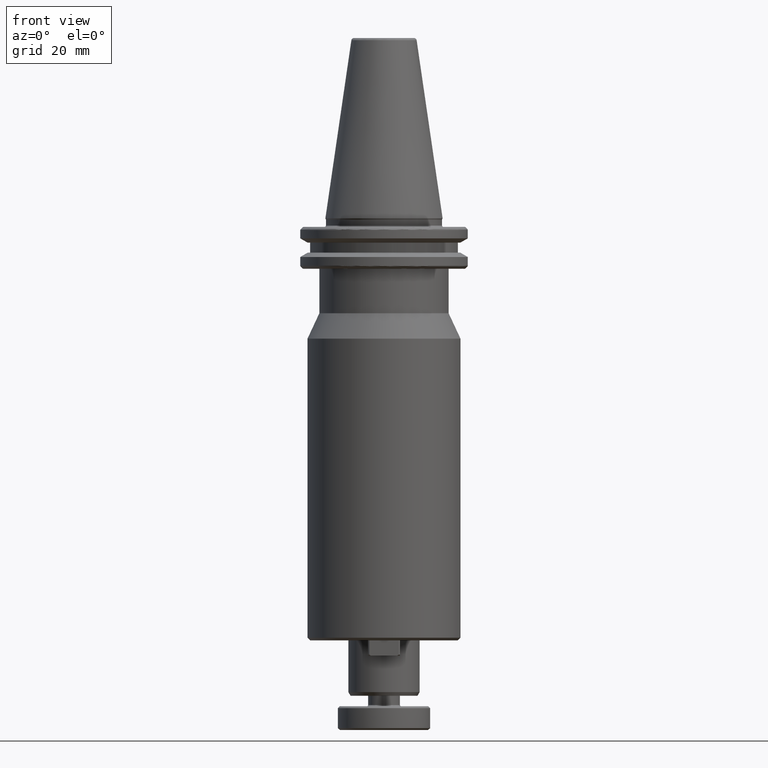
[diagram: clean part render]
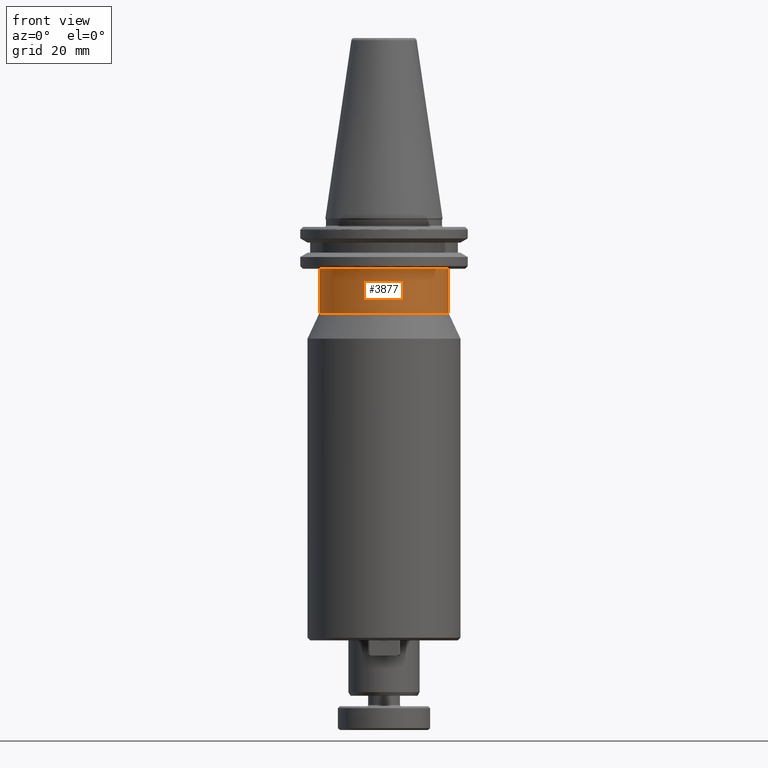
[diagram: same view with one face highlighted and labeled with its STEP entity id]
A machine part, front view. The second image highlights one B-rep face of the part: STEP entity #3877.
In plain terms, the highlighted cylindrical surface (partial cylindrical patch) has radius 24.5 mm, axis along (0, 0, 1).
Its self-contained STEP definition (entity closure, byte-faithful):
#101 = FACE_OUTER_BOUND ( 'NONE', #2073, .T. ) ;
#162 = CIRCLE ( 'NONE', #4006, 24.50000000000000000 ) ;
#250 = VERTEX_POINT ( 'NONE', #3318 ) ;
#475 = AXIS2_PLACEMENT_3D ( 'NONE', #3163, #1126, #3491 ) ;
#677 = CARTESIAN_POINT ( 'NONE',  ( 0.0000000000000000000, 0.0000000000000000000, 82.95681253582424100 ) ) ;
#681 = ORIENTED_EDGE ( 'NONE', *, *, #3479, .T. ) ;
#759 = CARTESIAN_POINT ( 'NONE',  ( 24.50000000000000000, 0.0000000000000000000, -35.94971885770703300 ) ) ;
#860 = DIRECTION ( 'NONE',  ( 1.000000000000000000, 0.0000000000000000000, 0.0000000000000000000 ) ) ;
#864 = DIRECTION ( 'NONE',  ( -0.0000000000000000000, -0.0000000000000000000, -1.000000000000000000 ) ) ;
#865 = CARTESIAN_POINT ( 'NONE',  ( 0.0000000000000000000, 0.0000000000000000000, -19.10000000000000500 ) ) ;
#977 = EDGE_CURVE ( 'NONE', #2034, #250, #162, .T. ) ;
#1126 = DIRECTION ( 'NONE',  ( 0.0000000000000000000, 0.0000000000000000000, -1.000000000000000000 ) ) ;
#1244 = CARTESIAN_POINT ( 'NONE',  ( -24.50000000000000000, 3.000384657911015500E-015, 82.95681253582424100 ) ) ;
#1353 = VERTEX_POINT ( 'NONE', #3596 ) ;
#1507 = VECTOR ( 'NONE', #1903, 1000.000000000000000 ) ;
#1903 = DIRECTION ( 'NONE',  ( 0.0000000000000000000, 0.0000000000000000000, 1.000000000000000000 ) ) ;
#2034 = VERTEX_POINT ( 'NONE', #3985 ) ;
#2073 = EDGE_LOOP ( 'NONE', ( #2955, #3757, #681, #3166 ) ) ;
#2326 = EDGE_CURVE ( 'NONE', #1353, #250, #3476, .T. ) ;
#2372 = DIRECTION ( 'NONE',  ( 0.0000000000000000000, 0.0000000000000000000, 1.000000000000000000 ) ) ;
#2409 = CYLINDRICAL_SURFACE ( 'NONE', #3813, 24.50000000000000000 ) ;
#2732 = DIRECTION ( 'NONE',  ( 0.0000000000000000000, 0.0000000000000000000, 1.000000000000000000 ) ) ;
#2830 = EDGE_CURVE ( 'NONE', #4015, #1353, #4011, .T. ) ;
#2955 = ORIENTED_EDGE ( 'NONE', *, *, #2326, .F. ) ;
#3039 = DIRECTION ( 'NONE',  ( 1.000000000000000000, 0.0000000000000000000, 0.0000000000000000000 ) ) ;
#3163 = CARTESIAN_POINT ( 'NONE',  ( 0.0000000000000000000, 0.0000000000000000000, -35.94971885770703300 ) ) ;
#3166 = ORIENTED_EDGE ( 'NONE', *, *, #977, .T. ) ;
#3297 = LINE ( 'NONE', #3870, #1507 ) ;
#3318 = CARTESIAN_POINT ( 'NONE',  ( -24.50000000000000000, 3.000384657911015500E-015, -19.10000000000000500 ) ) ;
#3476 = LINE ( 'NONE', #1244, #4226 ) ;
#3479 = EDGE_CURVE ( 'NONE', #4015, #2034, #3297, .T. ) ;
#3491 = DIRECTION ( 'NONE',  ( -1.000000000000000000, 0.0000000000000000000, 0.0000000000000000000 ) ) ;
#3596 = CARTESIAN_POINT ( 'NONE',  ( -24.50000000000000000, 3.000384657911015500E-015, -35.94971885770703300 ) ) ;
#3757 = ORIENTED_EDGE ( 'NONE', *, *, #2830, .F. ) ;
#3813 = AXIS2_PLACEMENT_3D ( 'NONE', #677, #2372, #3039 ) ;
#3870 = CARTESIAN_POINT ( 'NONE',  ( 24.50000000000000000, 0.0000000000000000000, 82.95681253582424100 ) ) ;
#3877 = ADVANCED_FACE ( 'NONE', ( #101 ), #2409, .T. ) ;
#3985 = CARTESIAN_POINT ( 'NONE',  ( 24.50000000000000000, 0.0000000000000000000, -19.10000000000000500 ) ) ;
#4006 = AXIS2_PLACEMENT_3D ( 'NONE', #865, #864, #860 ) ;
#4011 = CIRCLE ( 'NONE', #475, 24.50000000000000000 ) ;
#4015 = VERTEX_POINT ( 'NONE', #759 ) ;
#4226 = VECTOR ( 'NONE', #2732, 1000.000000000000000 ) ;